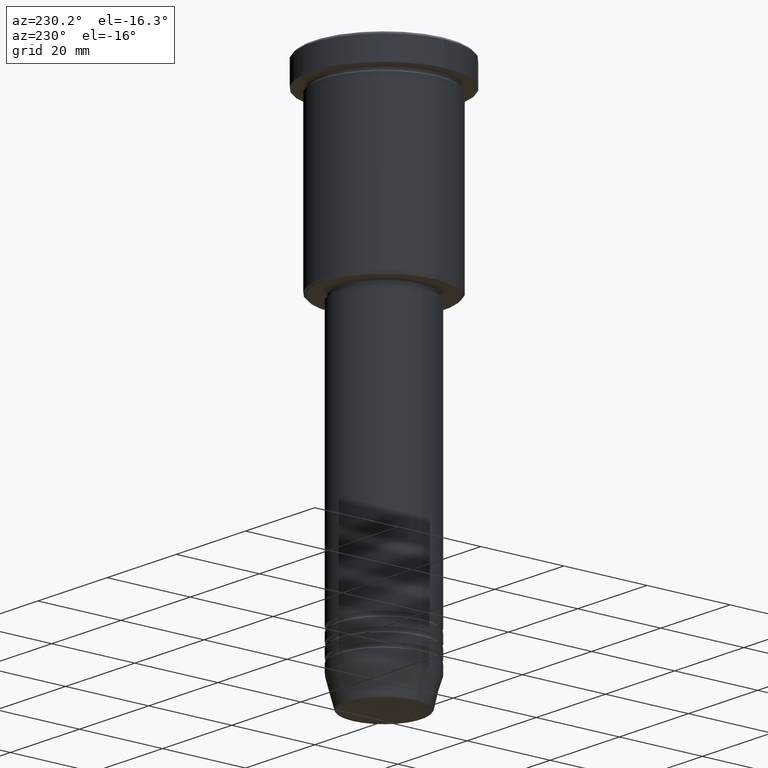
[diagram: clean part render]
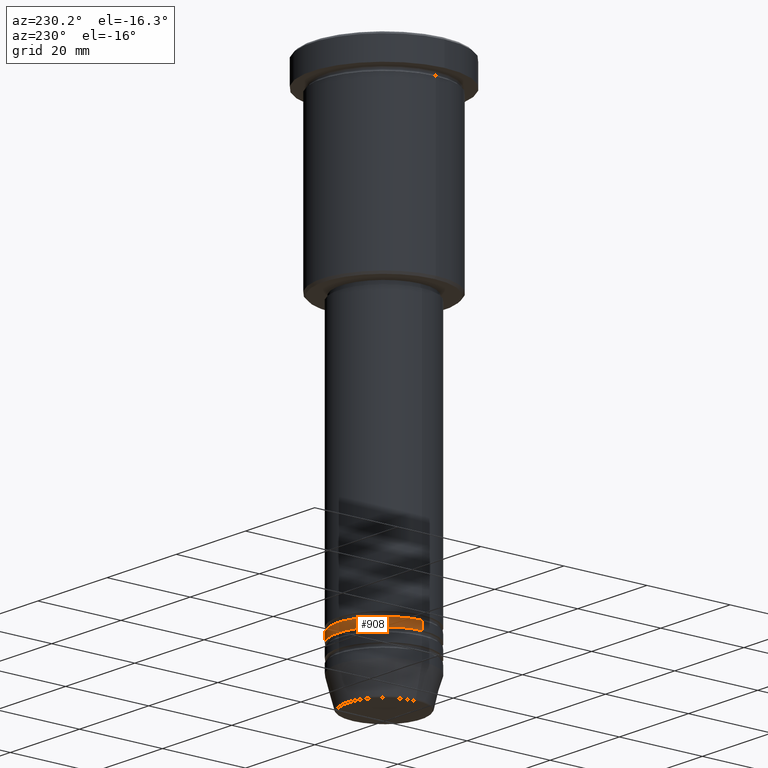
[diagram: same view with one face highlighted and labeled with its STEP entity id]
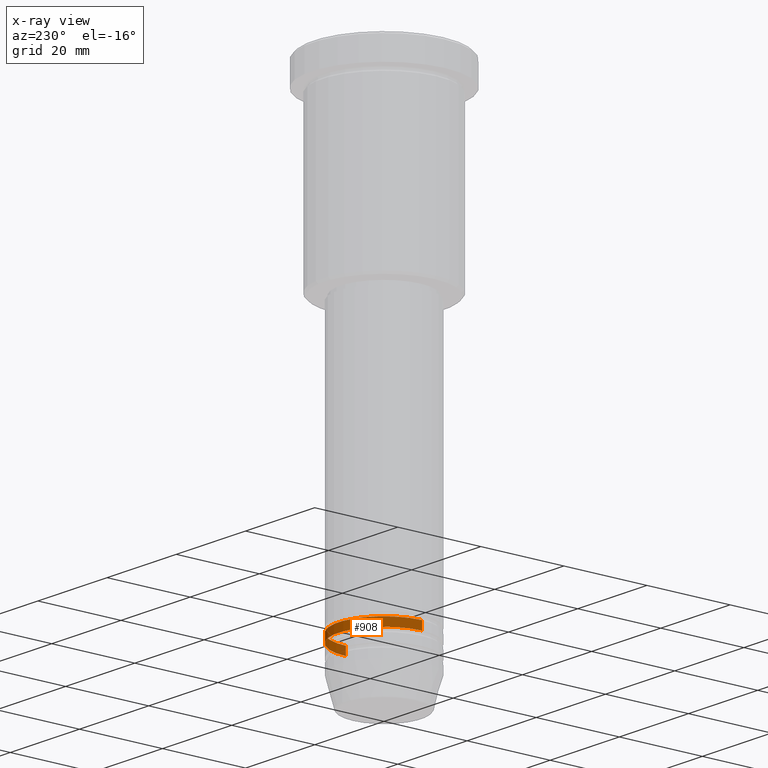
[diagram: x-ray of the same camera — body ghosted, the highlighted face saturated]
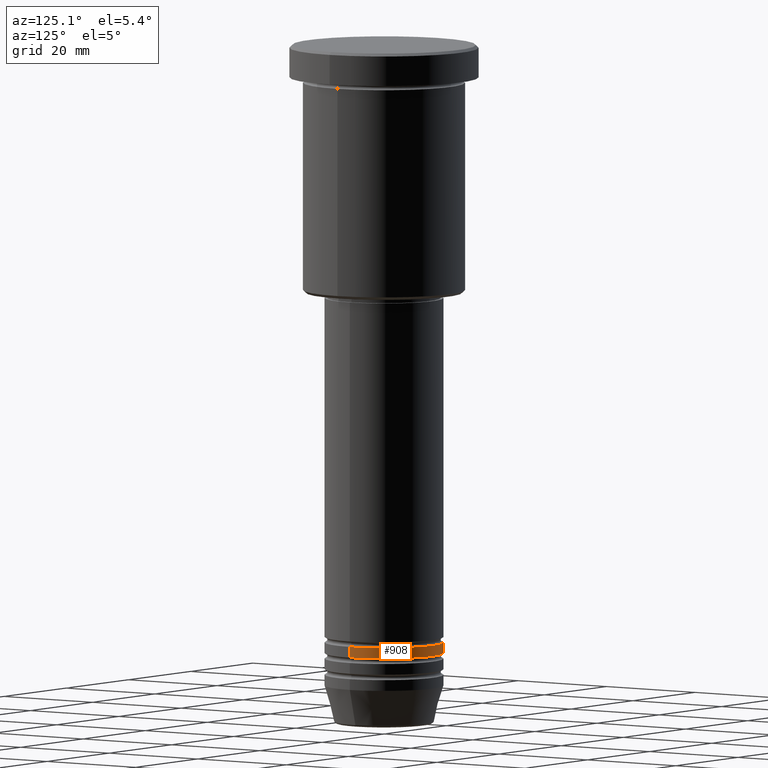
[diagram: same view with one face highlighted and labeled with its STEP entity id]
A machine part, auxiliary view. The second image highlights one B-rep face of the part: STEP entity #908.
The next image is the same camera in x-ray: the body ghosted, the highlighted face saturated — about 5% of this face is hidden behind the body in this view.
A second angle (auxiliary view) of the same face is appended — the face is thin or edge-on in the first view.
In plain terms, the highlighted cylindrical surface (partial cylindrical patch) has radius 11 mm, axis along (-0, -0, 1).
Its self-contained STEP definition (entity closure, byte-faithful):
#14 = ORIENTED_EDGE ( 'NONE', *, *, #466, .T. ) ;
#172 = CARTESIAN_POINT ( 'NONE',  ( -11.00000000000000000, 1.347111479062088405E-15, 0.000000000000000000 ) ) ;
#210 = VERTEX_POINT ( 'NONE', #440 ) ;
#226 = EDGE_CURVE ( 'NONE', #1154, #744, #465, .T. ) ;
#227 = VERTEX_POINT ( 'NONE', #914 ) ;
#238 = CARTESIAN_POINT ( 'NONE',  ( 0.000000000000000000, 0.000000000000000000, 0.000000000000000000 ) ) ;
#266 = EDGE_CURVE ( 'NONE', #210, #744, #1145, .T. ) ;
#299 = LINE ( 'NONE', #599, #351 ) ;
#336 = AXIS2_PLACEMENT_3D ( 'NONE', #238, #501, #872 ) ;
#351 = VECTOR ( 'NONE', #520, 1000.000000000000000 ) ;
#395 = EDGE_CURVE ( 'NONE', #227, #210, #299, .T. ) ;
#399 = CARTESIAN_POINT ( 'NONE',  ( -11.00000000000000000, 1.347111479062088405E-15, -110.9999999999999716 ) ) ;
#414 = FACE_OUTER_BOUND ( 'NONE', #985, .T. ) ;
#417 = CARTESIAN_POINT ( 'NONE',  ( 0.000000000000000000, 0.000000000000000000, -112.9999999999999574 ) ) ;
#418 = CARTESIAN_POINT ( 'NONE',  ( -11.00000000000000000, 1.347111479062088405E-15, -112.9999999999999574 ) ) ;
#440 = CARTESIAN_POINT ( 'NONE',  ( 11.00000000000000000, 0.000000000000000000, -110.9999999999999716 ) ) ;
#465 = LINE ( 'NONE', #172, #730 ) ;
#466 = EDGE_CURVE ( 'NONE', #227, #1154, #590, .T. ) ;
#501 = DIRECTION ( 'NONE',  ( -0.000000000000000000, -0.000000000000000000, 1.000000000000000000 ) ) ;
#520 = DIRECTION ( 'NONE',  ( -0.000000000000000000, -0.000000000000000000, 1.000000000000000000 ) ) ;
#590 = CIRCLE ( 'NONE', #841, 11.00000000000000000 ) ;
#599 = CARTESIAN_POINT ( 'NONE',  ( 11.00000000000000000, 0.000000000000000000, 0.000000000000000000 ) ) ;
#635 = DIRECTION ( 'NONE',  ( -0.000000000000000000, -0.000000000000000000, 1.000000000000000000 ) ) ;
#730 = VECTOR ( 'NONE', #759, 1000.000000000000000 ) ;
#744 = VERTEX_POINT ( 'NONE', #399 ) ;
#759 = DIRECTION ( 'NONE',  ( -0.000000000000000000, -0.000000000000000000, 1.000000000000000000 ) ) ;
#773 = AXIS2_PLACEMENT_3D ( 'NONE', #867, #1030, #1052 ) ;
#838 = ORIENTED_EDGE ( 'NONE', *, *, #226, .T. ) ;
#841 = AXIS2_PLACEMENT_3D ( 'NONE', #417, #635, #970 ) ;
#867 = CARTESIAN_POINT ( 'NONE',  ( 0.000000000000000000, 0.000000000000000000, -110.9999999999999716 ) ) ;
#872 = DIRECTION ( 'NONE',  ( 1.000000000000000000, 0.000000000000000000, 0.000000000000000000 ) ) ;
#908 = ADVANCED_FACE ( 'NONE', ( #414 ), #1146, .T. ) ;
#914 = CARTESIAN_POINT ( 'NONE',  ( 11.00000000000000000, 0.000000000000000000, -112.9999999999999574 ) ) ;
#970 = DIRECTION ( 'NONE',  ( 1.000000000000000000, 0.000000000000000000, 0.000000000000000000 ) ) ;
#985 = EDGE_LOOP ( 'NONE', ( #14, #838, #1018, #1072 ) ) ;
#1018 = ORIENTED_EDGE ( 'NONE', *, *, #266, .F. ) ;
#1030 = DIRECTION ( 'NONE',  ( -0.000000000000000000, -0.000000000000000000, 1.000000000000000000 ) ) ;
#1052 = DIRECTION ( 'NONE',  ( 1.000000000000000000, 0.000000000000000000, 0.000000000000000000 ) ) ;
#1072 = ORIENTED_EDGE ( 'NONE', *, *, #395, .F. ) ;
#1145 = CIRCLE ( 'NONE', #773, 11.00000000000000000 ) ;
#1146 = CYLINDRICAL_SURFACE ( 'NONE', #336, 11.00000000000000000 ) ;
#1154 = VERTEX_POINT ( 'NONE', #418 ) ;